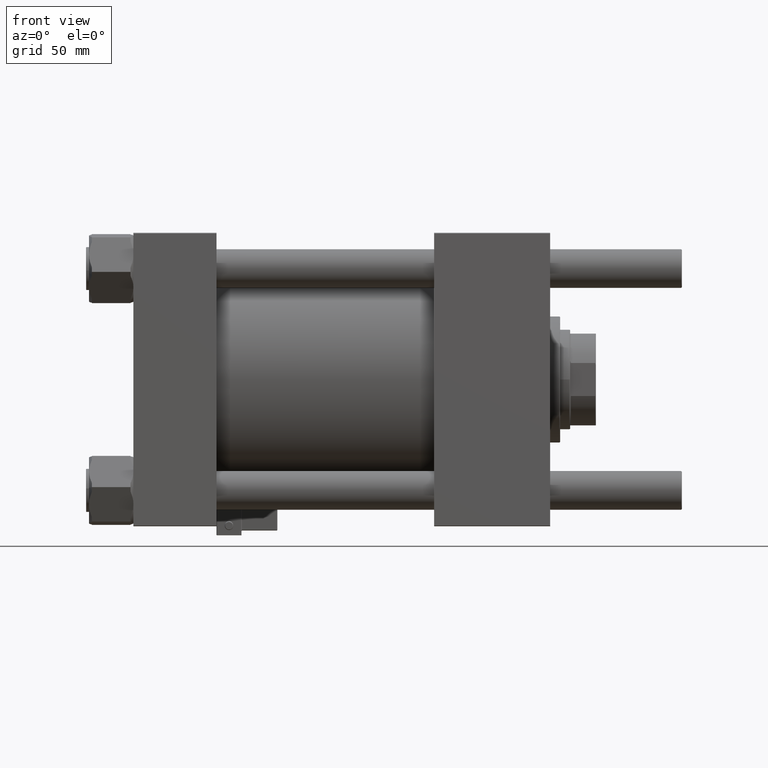
[diagram: clean part render]
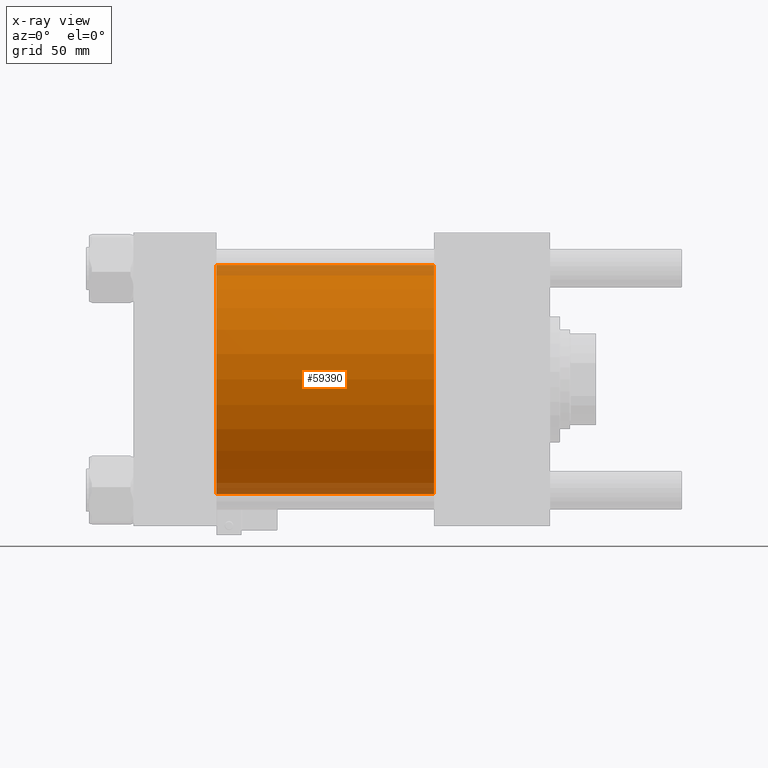
[diagram: x-ray — body ghosted, one internal face saturated and labeled with its STEP entity id]
A machine part, front view, then the same camera in x-ray: the body is ghosted and one INTERNAL B-rep face — a face not visible from any outside direction — is saturated and labeled: STEP entity #59390.
In plain terms, the highlighted cylindrical surface (partial cylindrical patch) has radius 80 mm, axis along (-1, -0, -0).
Its self-contained STEP definition (entity closure, byte-faithful):
#963 = CYLINDRICAL_SURFACE ( 'NONE', #39284, 80.00000000000000000 ) ;
#5259 = VERTEX_POINT ( 'NONE', #27201 ) ;
#7024 = CIRCLE ( 'NONE', #30089, 80.00000000000000000 ) ;
#7853 = VERTEX_POINT ( 'NONE', #21286 ) ;
#10004 = DIRECTION ( 'NONE',  ( 0.000000000000000000, 0.000000000000000000, 1.000000000000000000 ) ) ;
#12331 = CARTESIAN_POINT ( 'NONE',  ( 210.0000000000000000, -2.602085213965210642E-15, 0.000000000000000000 ) ) ;
#14528 = ORIENTED_EDGE ( 'NONE', *, *, #22961, .T. ) ;
#16893 = ORIENTED_EDGE ( 'NONE', *, *, #56493, .T. ) ;
#18599 = CARTESIAN_POINT ( 'NONE',  ( 58.00000000000000000, -2.602085213965210642E-15, 0.000000000000000000 ) ) ;
#19420 = ORIENTED_EDGE ( 'NONE', *, *, #52359, .F. ) ;
#20303 = DIRECTION ( 'NONE',  ( -1.000000000000000000, -0.000000000000000000, -0.000000000000000000 ) ) ;
#20873 = LINE ( 'NONE', #48557, #33599 ) ;
#21286 = CARTESIAN_POINT ( 'NONE',  ( 58.00000000000000000, 7.195089179213615410E-15, -80.00000000000000000 ) ) ;
#22245 = DIRECTION ( 'NONE',  ( 1.000000000000000000, 0.000000000000000000, 0.000000000000000000 ) ) ;
#22961 = EDGE_CURVE ( 'NONE', #48994, #7853, #38925, .T. ) ;
#27201 = CARTESIAN_POINT ( 'NONE',  ( 58.00000000000000000, -2.602085213965210642E-15, 80.00000000000000000 ) ) ;
#28999 = ORIENTED_EDGE ( 'NONE', *, *, #37519, .F. ) ;
#30089 = AXIS2_PLACEMENT_3D ( 'NONE', #18599, #22245, #40578 ) ;
#30354 = VECTOR ( 'NONE', #20303, 1000.000000000000000 ) ;
#33172 = DIRECTION ( 'NONE',  ( -1.000000000000000000, -0.000000000000000000, -0.000000000000000000 ) ) ;
#33599 = VECTOR ( 'NONE', #34695, 1000.000000000000000 ) ;
#34591 = DIRECTION ( 'NONE',  ( 1.000000000000000000, 0.000000000000000000, 0.000000000000000000 ) ) ;
#34695 = DIRECTION ( 'NONE',  ( -1.000000000000000000, -0.000000000000000000, -0.000000000000000000 ) ) ;
#36304 = CIRCLE ( 'NONE', #49781, 80.00000000000000000 ) ;
#37519 = EDGE_CURVE ( 'NONE', #54647, #5259, #20873, .T. ) ;
#38925 = LINE ( 'NONE', #43186, #30354 ) ;
#39284 = AXIS2_PLACEMENT_3D ( 'NONE', #43105, #33172, #10004 ) ;
#40578 = DIRECTION ( 'NONE',  ( 0.000000000000000000, 0.000000000000000000, -1.000000000000000000 ) ) ;
#43105 = CARTESIAN_POINT ( 'NONE',  ( 210.0000000000000000, -2.602085213965210642E-15, 0.000000000000000000 ) ) ;
#43186 = CARTESIAN_POINT ( 'NONE',  ( 210.0000000000000000, 7.195089179213615410E-15, -80.00000000000000000 ) ) ;
#46615 = CARTESIAN_POINT ( 'NONE',  ( 210.0000000000000000, -2.602085213965210642E-15, 80.00000000000000000 ) ) ;
#48557 = CARTESIAN_POINT ( 'NONE',  ( 210.0000000000000000, -2.602085213965210642E-15, 80.00000000000000000 ) ) ;
#48994 = VERTEX_POINT ( 'NONE', #49934 ) ;
#49781 = AXIS2_PLACEMENT_3D ( 'NONE', #12331, #34591, #53279 ) ;
#49934 = CARTESIAN_POINT ( 'NONE',  ( 210.0000000000000000, 7.195089179213615410E-15, -80.00000000000000000 ) ) ;
#51237 = FACE_OUTER_BOUND ( 'NONE', #56752, .T. ) ;
#52359 = EDGE_CURVE ( 'NONE', #5259, #7853, #7024, .T. ) ;
#53279 = DIRECTION ( 'NONE',  ( 0.000000000000000000, 0.000000000000000000, -1.000000000000000000 ) ) ;
#54647 = VERTEX_POINT ( 'NONE', #46615 ) ;
#56493 = EDGE_CURVE ( 'NONE', #54647, #48994, #36304, .T. ) ;
#56752 = EDGE_LOOP ( 'NONE', ( #16893, #14528, #19420, #28999 ) ) ;
#59390 = ADVANCED_FACE ( 'NONE', ( #51237 ), #963, .F. ) ;